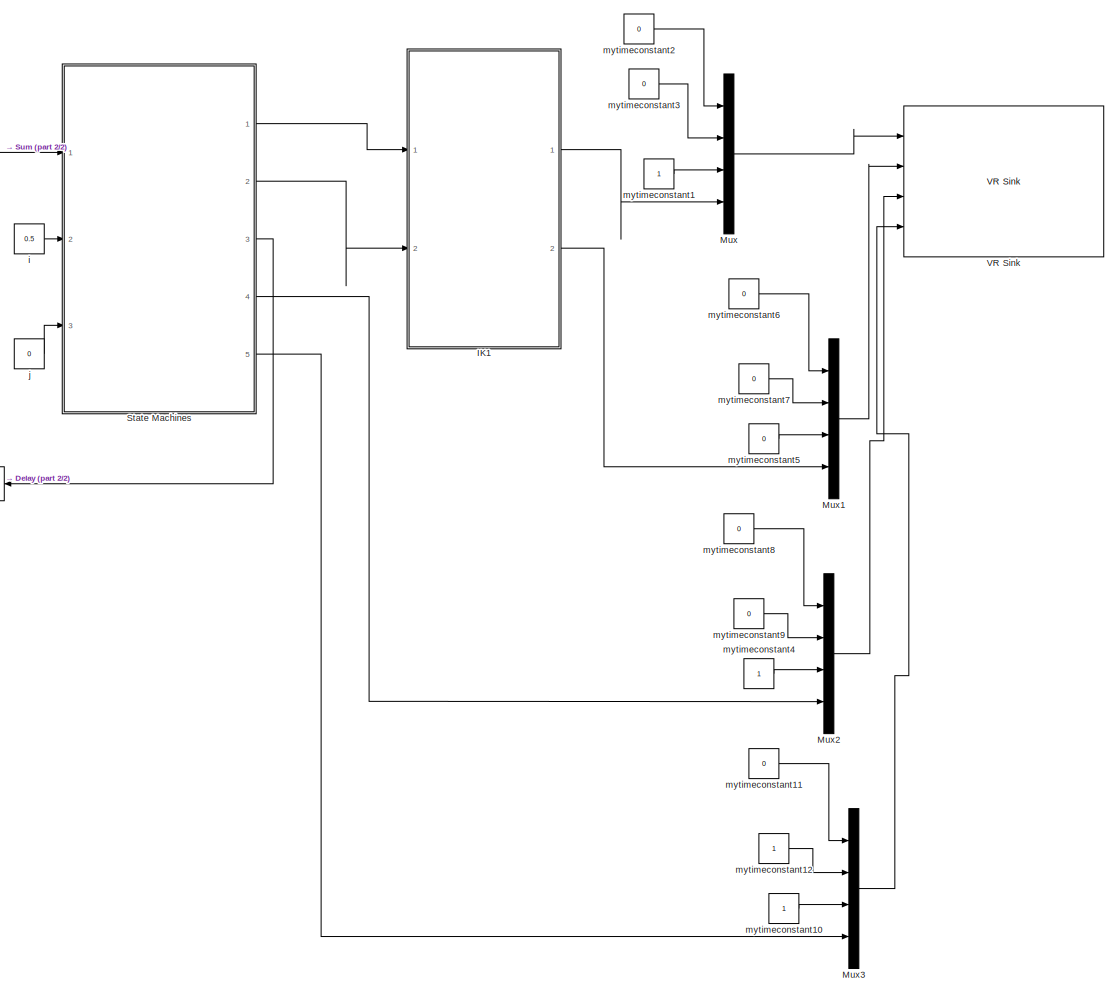
[diagram: root canvas - part 1/2, most of the canvas]
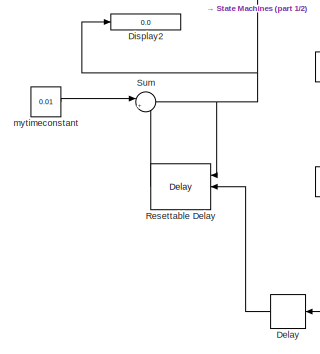
[diagram: root canvas - part 2/2, middle left region]
MODEL slx_a4c3c7fc7f07
KIND model
CONFIG AbsTol = auto
CONFIG EnableMultiTasking = off
CONFIG FixedStep = auto
CONFIG MaxStep = auto
CONFIG MinStep = auto
CONFIG RelTol = 1e-3
CONFIG SampleTimeConstraint = Unconstrained
CONFIG SolverName = VariableStepAuto
CONFIG StartTime = 0.0
CONFIG StopTime = inf
BLOCK [Delay] Delay
  DelayLength = 1
  InitialCondition = 0
  InputPortMap = u0
  Ports = [1, 1]
BLOCK [Display] Display2
  Decimation = 1
  Ports = [1]
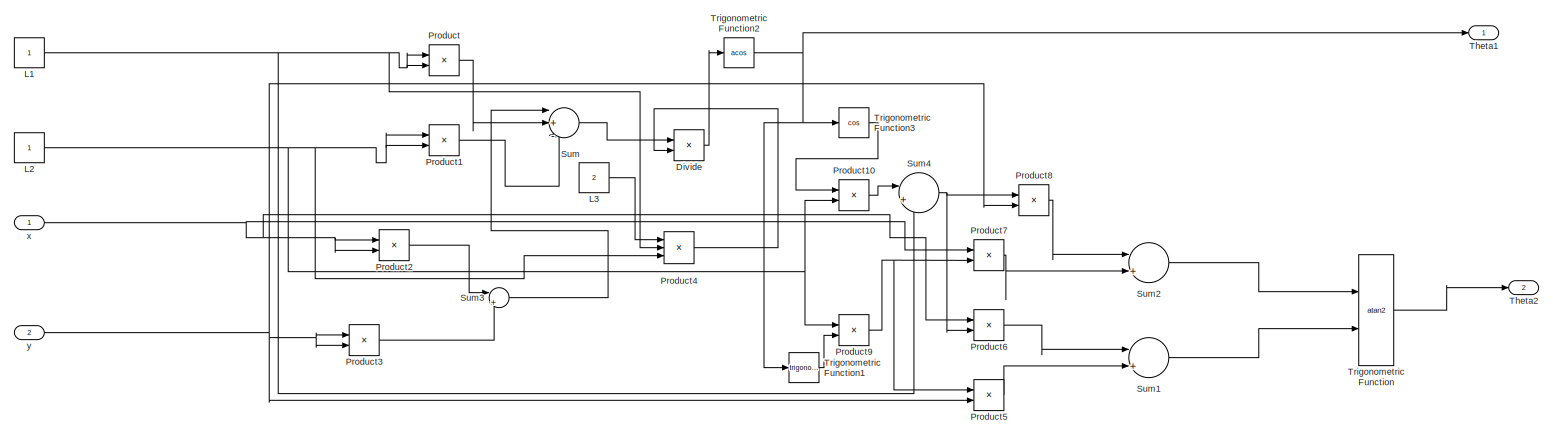
[diagram: IK1 - part 1/1, most of the canvas]
BLOCK [SubSystem] IK1
  Ports = [2, 2]
  RequestExecContextInheritance = off
BLOCK [Product] IK1/Divide
  Inputs = */
  Ports = [2, 1]
BLOCK [Constant] IK1/L1
BLOCK [Constant] IK1/L2
BLOCK [Constant] IK1/L3
  Value = 2
BLOCK [Product] IK1/Product
  Ports = [2, 1]
BLOCK [Product] IK1/Product1
  Ports = [2, 1]
BLOCK [Product] IK1/Product10
  Ports = [2, 1]
BLOCK [Product] IK1/Product2
  Ports = [2, 1]
BLOCK [Product] IK1/Product3
  Ports = [2, 1]
BLOCK [Product] IK1/Product4
  Inputs = 3
  Ports = [3, 1]
BLOCK [Product] IK1/Product5
  Ports = [2, 1]
BLOCK [Product] IK1/Product6
  Ports = [2, 1]
BLOCK [Product] IK1/Product7
  Ports = [2, 1]
BLOCK [Product] IK1/Product8
  Ports = [2, 1]
BLOCK [Product] IK1/Product9
  Ports = [2, 1]
BLOCK [Sum] IK1/Sum
  Inputs = |+--
  Ports = [3, 1]
BLOCK [Sum] IK1/Sum1
  Inputs = |++
  Ports = [2, 1]
BLOCK [Sum] IK1/Sum2
  Inputs = |+-
  Ports = [2, 1]
BLOCK [Sum] IK1/Sum3
  Inputs = |++
  Ports = [2, 1]
BLOCK [Sum] IK1/Sum4
  Inputs = |++
  Ports = [2, 1]
BLOCK [Outport] IK1/Theta1
  VectorParamsAs1DForOutWhenUnconnected = off
BLOCK [Outport] IK1/Theta2
  Port = 2
  VectorParamsAs1DForOutWhenUnconnected = off
BLOCK [Trigonometry] IK1/Trigonometric Function
  Operator = atan2
  Ports = [2, 1]
BLOCK [Trigonometry] IK1/Trigonometric Function1
  Ports = [1, 1]
BLOCK [Trigonometry] IK1/Trigonometric Function2
  Operator = acos
  Ports = [1, 1]
BLOCK [Trigonometry] IK1/Trigonometric Function3
  Operator = cos
  Ports = [1, 1]
BLOCK [Inport] IK1/x
BLOCK [Inport] IK1/y
  Port = 2
BLOCK [Mux] Mux
  DisplayOption = bar
  Ports = [4, 1]
BLOCK [Mux] Mux1
  DisplayOption = bar
  Ports = [4, 1]
BLOCK [Mux] Mux2
  DisplayOption = bar
  Ports = [4, 1]
BLOCK [Mux] Mux3
  DisplayOption = bar
  Ports = [4, 1]
BLOCK [Delay] Resettable Delay
  DelayLength = 1
  ExternalReset = Rising
  InitialConditionSource = Input port
  InputPortMap = u0,r5,p4
  NameLocation = top
  Ports = [3, 1]
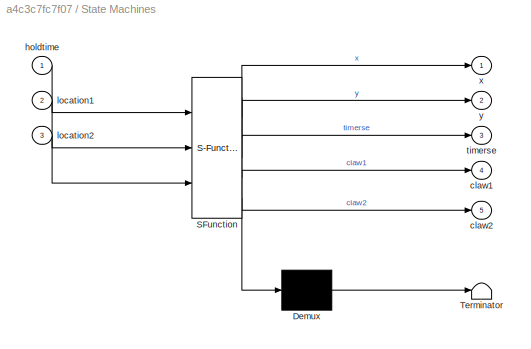
BLOCK [SubSystem] State Machines
  ErrorFcn = Stateflow.Translate.translate
  PermitHierarchicalResolution = ExplicitOnly
  Ports = [3, 5]
  RequestExecContextInheritance = off
  SFBlockType = Chart
  TreatAsAtomicUnit = on
BLOCK [Demux] State Machines/ Demux 
  Outputs = 1
  Ports = [1, 1]
BLOCK [S-Function] State Machines/ SFunction 
  EnableBusSupport = on
  FunctionName = sf_sfun
  PortCounts = [3 6]
  Ports = [3, 6]
  SFcnIsStateOwnerBlock = off
  SFunctionDeploymentMode = off
  Tag = Stateflow S-Function 3
BLOCK [Terminator] State Machines/ Terminator 
BLOCK [Outport] State Machines/claw1
  Port = 4
BLOCK [Outport] State Machines/claw2
  Port = 5
BLOCK [Inport] State Machines/holdtime
BLOCK [Inport] State Machines/location1
  Port = 2
BLOCK [Inport] State Machines/location2
  Port = 3
BLOCK [Outport] State Machines/timerse
  Port = 3
BLOCK [Outport] State Machines/x
BLOCK [Outport] State Machines/y
  Port = 2
BLOCK [Sum] Sum
  Inputs = |++
  Ports = [2, 1]
BLOCK [Reference] VR Sink  REF=vrlib/VR Sink
  InstantiateOnLoad = on
  Ports = [4]
  SourceBlock = vrlib/VR Sink
  SourceProductBaseCode = SL
  SourceType = Virtual Reality Sink
BLOCK [Constant] i
  Value = 0.5
BLOCK [Constant] j
  Value = 0
BLOCK [Constant] mytimeconstant
  Value = 0.01
BLOCK [Constant] mytimeconstant1
BLOCK [Constant] mytimeconstant10
BLOCK [Constant] mytimeconstant11
  Value = 0
BLOCK [Constant] mytimeconstant12
BLOCK [Constant] mytimeconstant2
  Value = 0
BLOCK [Constant] mytimeconstant3
  Value = 0
BLOCK [Constant] mytimeconstant4
BLOCK [Constant] mytimeconstant5
  Value = 0
BLOCK [Constant] mytimeconstant6
  Value = 0
BLOCK [Constant] mytimeconstant7
  Value = 0
BLOCK [Constant] mytimeconstant8
  Value = 0
BLOCK [Constant] mytimeconstant9
  Value = 0
LINE Delay:1 -> Resettable Delay:2
LINE IK1/Divide:1 -> IK1/Trigonometric Function2:1
NET IK1/L1:1 -> IK1/Product4:2, IK1/Product:1, IK1/Product:2, IK1/Sum4:2
NET IK1/L2:1 -> IK1/Product10:2, IK1/Product1:1, IK1/Product1:2, IK1/Product4:3, IK1/Product9:1
LINE IK1/L3:1 -> IK1/Product4:1
LINE IK1/Product10:1 -> IK1/Sum4:1
LINE IK1/Product1:1 -> IK1/Sum:3
LINE IK1/Product2:1 -> IK1/Sum3:1
LINE IK1/Product3:1 -> IK1/Sum3:2
LINE IK1/Product4:1 -> IK1/Divide:2
LINE IK1/Product5:1 -> IK1/Sum1:2
LINE IK1/Product6:1 -> IK1/Sum1:1
LINE IK1/Product7:1 -> IK1/Sum2:2
LINE IK1/Product8:1 -> IK1/Sum2:1
NET IK1/Product9:1 -> IK1/Product5:1, IK1/Product7:2
LINE IK1/Product:1 -> IK1/Sum:2
LINE IK1/Sum1:1 -> IK1/Trigonometric Function:2
LINE IK1/Sum2:1 -> IK1/Trigonometric Function:1
LINE IK1/Sum3:1 -> IK1/Sum:1
NET IK1/Sum4:1 -> IK1/Product6:2, IK1/Product8:1
LINE IK1/Sum:1 -> IK1/Divide:1
LINE IK1/Trigonometric Function1:1 -> IK1/Product9:2
NET IK1/Trigonometric Function2:1 -> IK1/Theta1:1, IK1/Trigonometric Function1:1, IK1/Trigonometric Function3:1
LINE IK1/Trigonometric Function3:1 -> IK1/Product10:1
LINE IK1/Trigonometric Function:1 -> IK1/Theta2:1
NET IK1/x:1 -> IK1/Product2:1, IK1/Product2:2, IK1/Product6:1, IK1/Product7:1
NET IK1/y:1 -> IK1/Product3:1, IK1/Product3:2, IK1/Product5:2, IK1/Product8:2
LINE IK1:1 -> Mux:4
LINE IK1:2 -> Mux1:4
LINE Mux1:1 -> VR Sink:2
LINE Mux2:1 -> VR Sink:3
LINE Mux3:1 -> VR Sink:4
LINE Mux:1 -> VR Sink:1
LINE Resettable Delay:1 -> Sum:2
LINE State Machines:1 -> IK1:1
LINE State Machines:2 -> IK1:2
LINE State Machines:3 -> Delay:1
LINE State Machines:4 -> Mux2:4
LINE State Machines:5 -> Mux3:4
NET Sum:1 -> Display2:1, Resettable Delay:1, State Machines:1
LINE i:1 -> State Machines:2
LINE j:1 -> State Machines:3
LINE mytimeconstant10:1 -> Mux3:3
LINE mytimeconstant11:1 -> Mux3:1
LINE mytimeconstant12:1 -> Mux3:2
LINE mytimeconstant1:1 -> Mux:3
LINE mytimeconstant2:1 -> Mux:1
LINE mytimeconstant3:1 -> Mux:2
LINE mytimeconstant4:1 -> Mux2:3
LINE mytimeconstant5:1 -> Mux1:3
LINE mytimeconstant6:1 -> Mux1:1
LINE mytimeconstant7:1 -> Mux1:2
LINE mytimeconstant8:1 -> Mux2:1
LINE mytimeconstant9:1 -> Mux2:2
LINE mytimeconstant:1 -> Sum:1
note: NET lines group one-source signal fan-out (src -> all destinations, sorted); 1:1 wires keep LINE
CHART State Machines states=8 transitions=9
  STATE_LABEL 'startstate\n\nx=0; y=0;timerse=0;claw1=0;claw2=0;'
  STATE_LABEL 'holdstate3\n\nx=0,y=0;timerse=1;'
  STATE_LABEL 'centerstate\n\nx=0,y=0;timerse=0;'
  STATE_LABEL 'holdstate2\n\nx=location1;y=location2;timerse=0;claw1=3.14/2; claw2=3.14/2;'
  STATE_LABEL 'holdstate1\n\nx=0;y=0;timerse=0;\n'
  STATE_LABEL 'graspstate\n\nx=location1;y=location2;timerse=0;claw1=3.14/2; claw2=3.14/2;'
  STATE_LABEL 'targetpostion\n\nx=location1,y=location2;timerse=0;'
  STATE_LABEL 'holdstate4\n\nx=location1;y=location2;timerse=0;'
CHART  states=0 transitions=0
